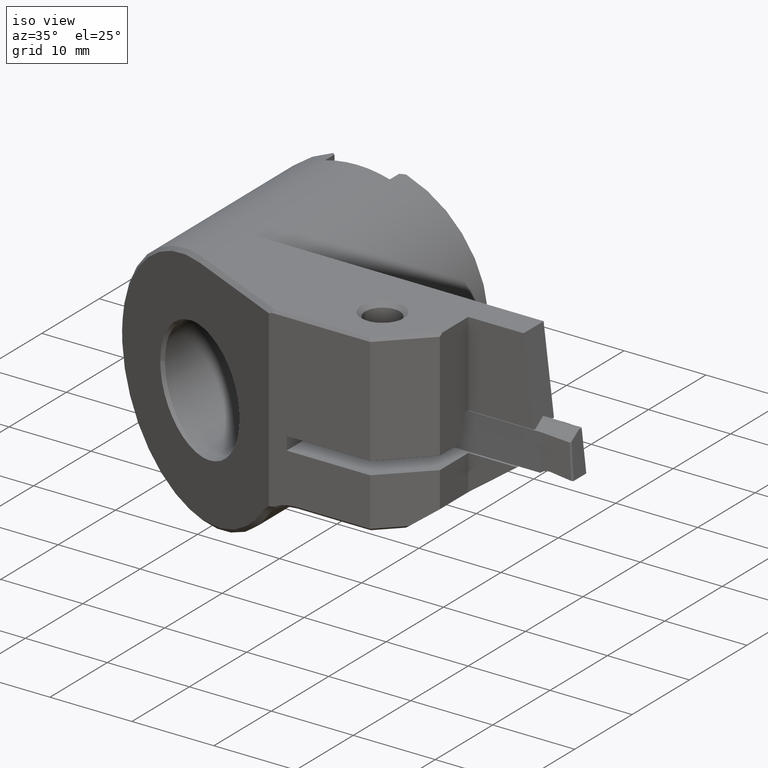
[diagram: clean part render]
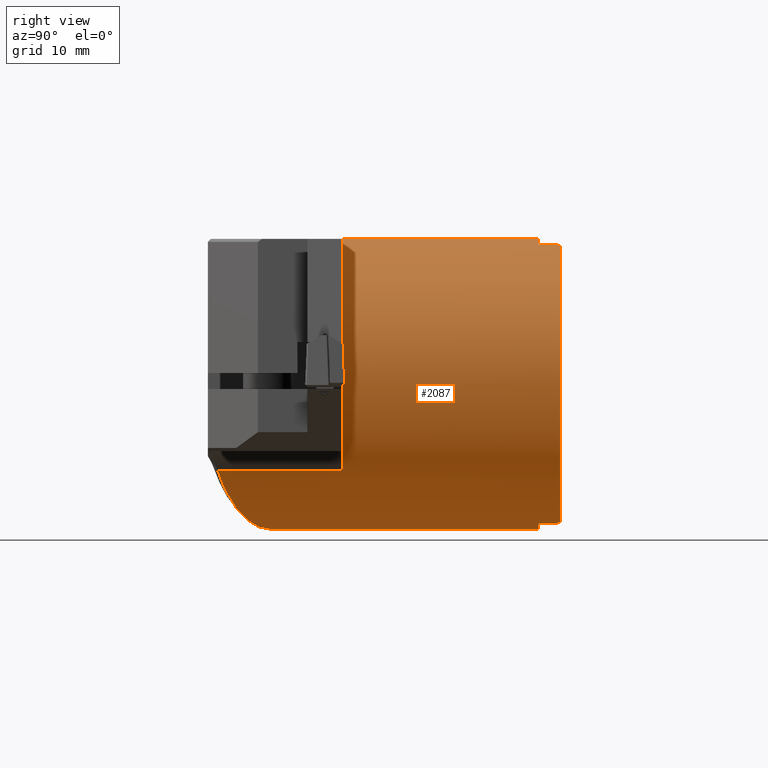
[diagram: tour spotlight — one face highlighted and labeled with its STEP entity id]
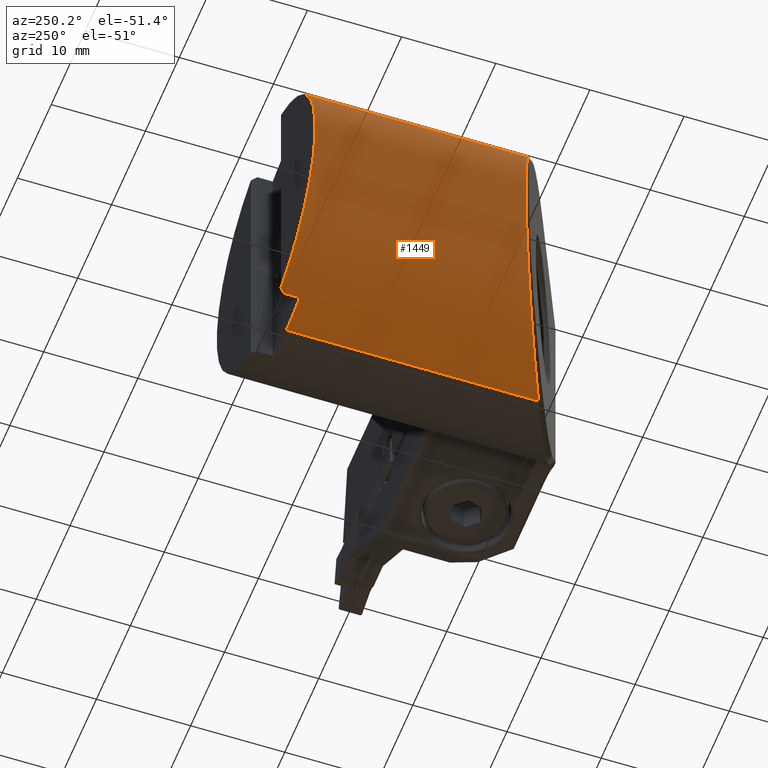
[diagram: tour spotlight — one face highlighted and labeled with its STEP entity id]
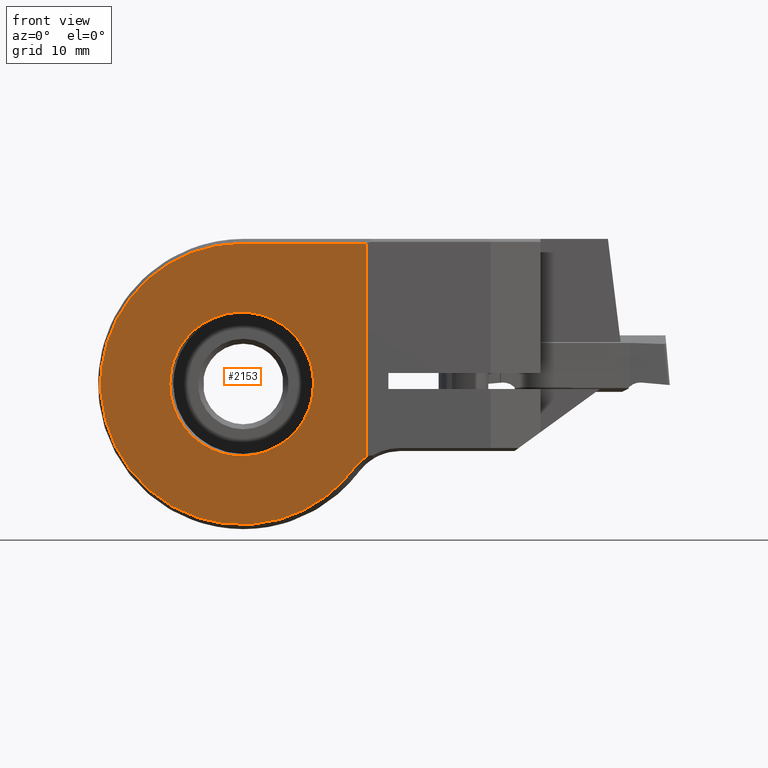
[diagram: tour spotlight — one face highlighted and labeled with its STEP entity id]
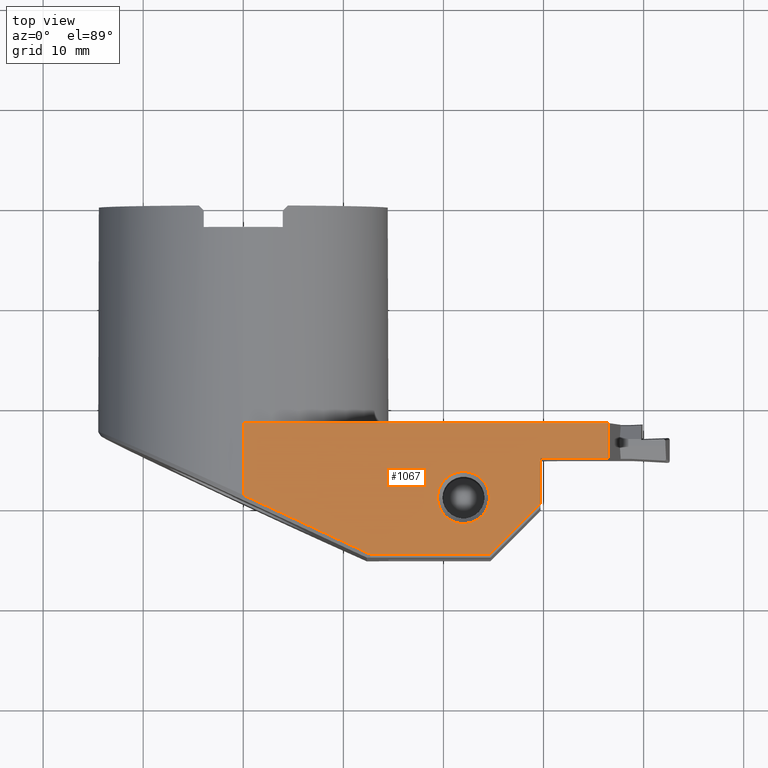
[diagram: tour spotlight — one face highlighted and labeled with its STEP entity id]
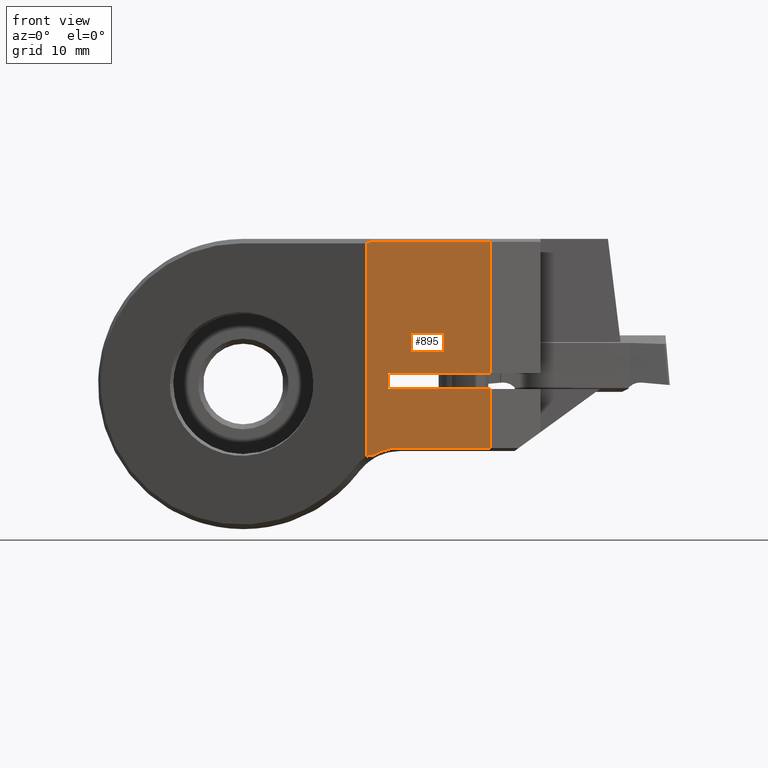
[diagram: tour spotlight — one face highlighted and labeled with its STEP entity id]
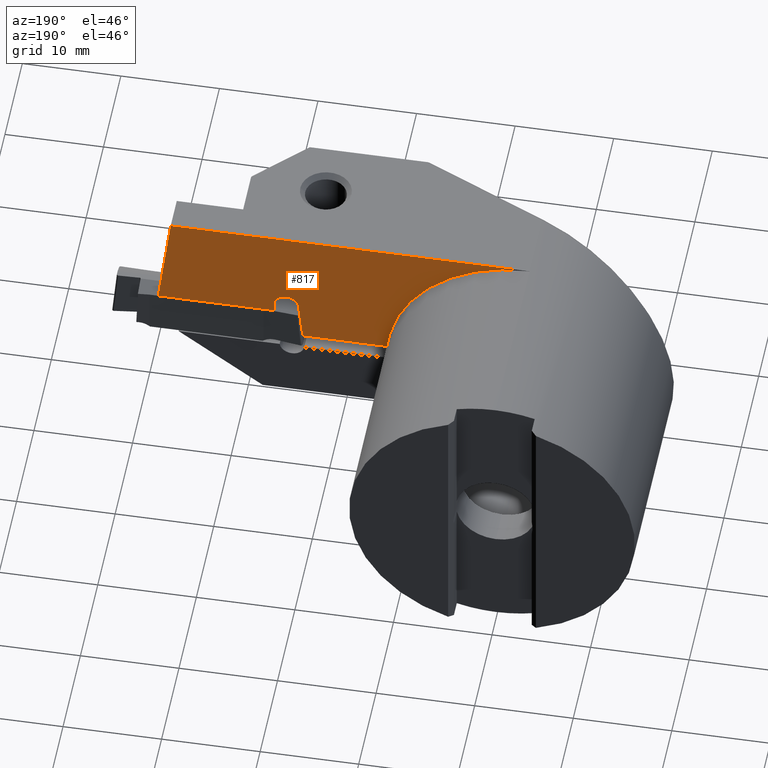
[diagram: tour spotlight — one face highlighted and labeled with its STEP entity id]
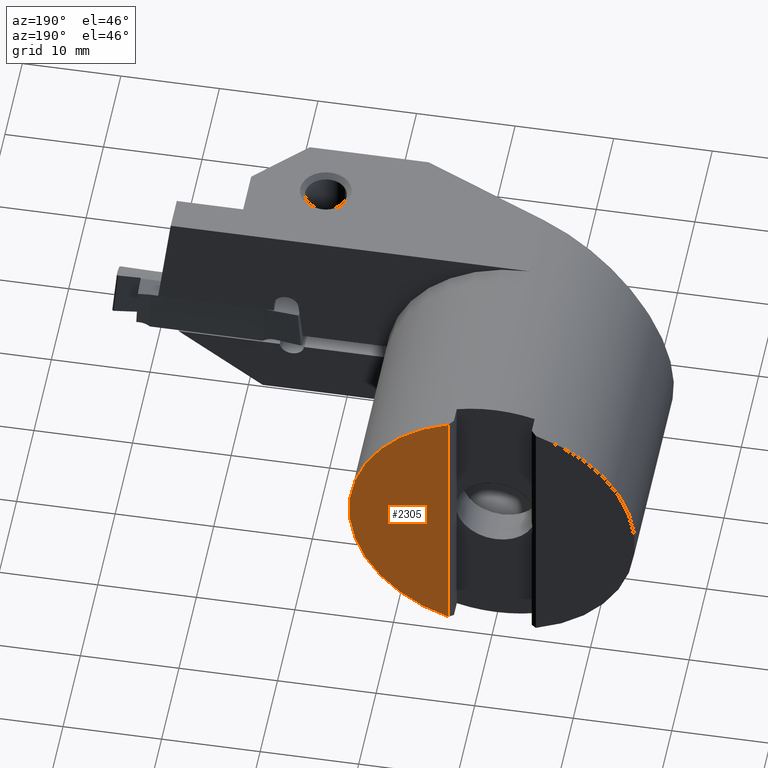
[diagram: tour spotlight — one face highlighted and labeled with its STEP entity id]
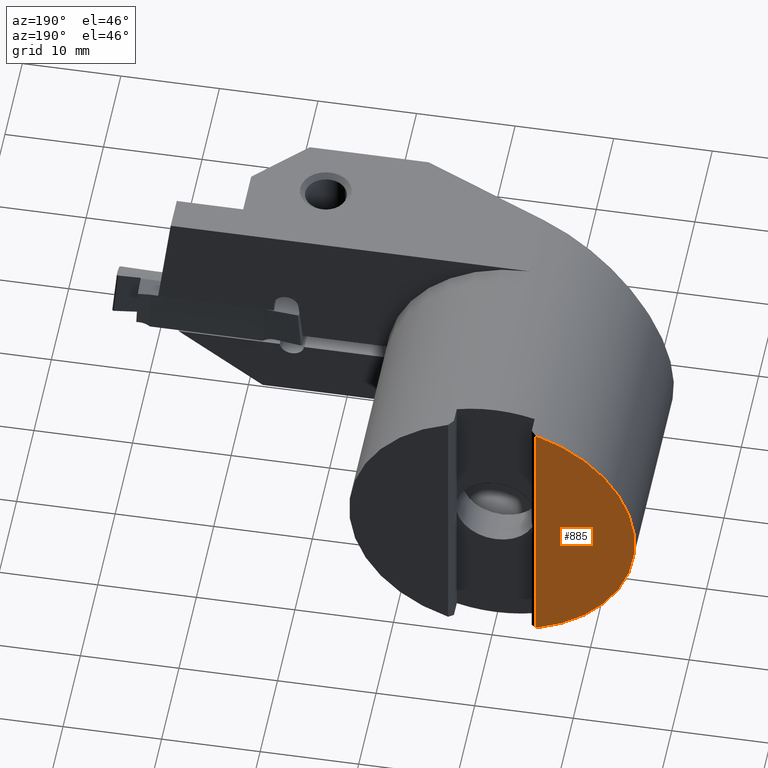
[diagram: tour spotlight — one face highlighted and labeled with its STEP entity id]
A machine part: a face-by-face anatomy tour. The part has 143 B-rep faces; the first image is the clean iso view, then the 8 largest visible faces are spotlighted one at a time (largest first), each with its STEP entity span.

Face 1 — right view, entity #2087. In plain terms, the highlighted cylindrical surface (partial cylindrical patch) has radius 14.5 mm, axis along (-0, 1, -0).
Definition (entity closure, byte-faithful):
#829=EDGE_CURVE('NONE',#1865,#2063,#2369,.T.);
#883=VERTEX_POINT('NONE',#2427);
#1105=VERTEX_POINT('NONE',#2675);
#1155=VERTEX_POINT('NONE',#2728);
#1233=EDGE_CURVE('NONE',#1473,#1371,#2812,.F.);
#1239=EDGE_CURVE('NONE',#2279,#1641,#2818,.F.);
#1311=EDGE_CURVE('NONE',#1641,#1473,#2895,.F.);
#1371=VERTEX_POINT('NONE',#2960);
#1397=EDGE_CURVE('NONE',#2245,#1155,#2990,.T.);
#1451=EDGE_CURVE('NONE',#2009,#1865,#3049,.T.);
#1473=VERTEX_POINT('NONE',#3073);
#1511=EDGE_CURVE('NONE',#2009,#1105,#3114,.T.);
#1583=EDGE_CURVE('NONE',#2063,#2217,#3195,.T.);
#1641=VERTEX_POINT('NONE',#3260);
#1643=EDGE_CURVE('NONE',#1105,#1883,#3262,.T.);
#1803=EDGE_CURVE('NONE',#1371,#1155,#3434,.F.);
#1839=EDGE_CURVE('NONE',#1883,#883,#3477,.T.);
#1865=VERTEX_POINT('NONE',#3506);
#1883=VERTEX_POINT('NONE',#3526);
#2009=VERTEX_POINT('NONE',#3667);
#2031=EDGE_CURVE('NONE',#2217,#2279,#3693,.F.);
#2063=VERTEX_POINT('NONE',#3730);
#2087=ADVANCED_FACE('NONE',(#3756),#3757,.T.);
#2163=EDGE_CURVE('NONE',#2245,#883,#3840,.F.);
#2217=VERTEX_POINT('NONE',#3896);
#2245=VERTEX_POINT('NONE',#3926);
#2279=VERTEX_POINT('NONE',#3964);
#2369=B_SPLINE_CURVE_WITH_KNOTS('',3,(#4072,#4073,#4074,#4075,#4076,#4077,#4078,#4079,#4080,#4081,#4082,#4083,#4084,#4085,#4086,#4087,#4088,#4089),.UNSPECIFIED.,.F.,.F.,(4,2,2,2,2,2,2,2,4),(-16.5312577497098,-16.2840481434787,-16.1113535424806,-16.0281642428642,-15.9152457417017,-10.2315228764494,-9.4597135466049,-2.70241459726312,-0.0),.UNSPECIFIED.);
#2427=CARTESIAN_POINT('',(0.0,-2.15,14.5));
#2675=CARTESIAN_POINT('',(14.5,-21.75,8.87839606521223E-016));
#2728=CARTESIAN_POINT('',(3.95,-0.5,13.9516128099944));
#2812=CIRCLE('',#5012,14.5);
#2818=LINE('',#5021,#5022);
#2895=ELLIPSE('',#5153,20.5060966544098,14.5);
#2960=CARTESIAN_POINT('',(4.45,0.0,13.800271736455));
#2990=LINE('',#5402,#5403);
#3049=LINE('',#5496,#5497);
#3073=CARTESIAN_POINT('',(4.45,0.0,-13.800271736455));
#3114=CIRCLE('',#5652,14.5);
#3195=B_SPLINE_CURVE_WITH_KNOTS('',3,(#5776,#5777,#5778,#5779),.UNSPECIFIED.,.F.,.F.,(4,4),(0.000218802101517351,0.02702),.UNSPECIFIED.);
#3260=CARTESIAN_POINT('',(3.95,-0.500000000000001,-13.9516128099944));
#3262=CIRCLE('',#5868,14.5);
#3434=ELLIPSE('',#6175,20.5060966544098,14.5);
#3477=LINE('',#6277,#6278);
#3506=CARTESIAN_POINT('',(11.6,-34.1922659672342,-8.7));
#3526=CARTESIAN_POINT('',(0.0,-21.75,14.5));
#3667=CARTESIAN_POINT('',(11.6,-21.75,-8.7));
#3693=CIRCLE('',#6659,14.5);
#3730=CARTESIAN_POINT('',(0.000488669164346957,-28.9511978984827,-14.4999999917656));
#3756=FACE_OUTER_BOUND('',#6767,.T.);
#3757=CYLINDRICAL_SURFACE('',#6768,14.5);
#3840=CIRCLE('',#6897,14.5);
#3896=CARTESIAN_POINT('',(1.77567921304245E-015,-2.15,-14.5));
#3926=CARTESIAN_POINT('',(3.95,-2.15,13.9516128099944));
#3964=CARTESIAN_POINT('',(3.95,-2.15,-13.9516128099944));
#4072=CARTESIAN_POINT('',(11.9430677180678,-34.3596601884355,-8.22272056448761));
#4073=CARTESIAN_POINT('',(11.8947036858328,-34.3340996596166,-8.29296676920429));
#4074=CARTESIAN_POINT('',(11.8456355585123,-34.3090523159571,-8.36290877997697));
#4075=CARTESIAN_POINT('',(11.7610920627329,-34.2673801047458,-8.48117257062569));
#4076=CARTESIAN_POINT('',(11.7259799518608,-34.2504933385859,-8.52965332596728));
#4077=CARTESIAN_POINT('',(11.6734471688633,-34.2258452308882,-8.601247853658));
#4078=CARTESIAN_POINT('',(11.6562894454562,-34.2178906005979,-8.62448558888405));
#4079=CARTESIAN_POINT('',(11.6156560735646,-34.1992767724238,-8.67917467242156));
#4080=CARTESIAN_POINT('',(11.5955561813075,-34.1902682486988,-8.70599747656782));
#4081=CARTESIAN_POINT('',(10.4740491750109,-33.6855525788399,-10.1919824284201));
#4082=CARTESIAN_POINT('',(9.12483495370816,-33.0713106011383,-11.4070066988285));
#4083=CARTESIAN_POINT('',(7.41450644106796,-32.2996631504415,-12.4632602106402));
#4084=CARTESIAN_POINT('',(7.20729602775257,-32.2062038544544,-12.5842047441199));
#4085=CARTESIAN_POINT('',(5.16163812433174,-31.2834452455987,-13.7113675832247));
#4086=CARTESIAN_POINT('',(3.1478135043816,-30.369831384894,-14.3025533941185));
#4087=CARTESIAN_POINT('',(0.279671102408739,-29.0770444961376,-14.5205720910502));
#4088=CARTESIAN_POINT('',(-0.543379877377662,-28.7064247674546,-14.5130692734401));
#4089=CARTESIAN_POINT('',(-1.36099809824959,-28.336278878168,-14.4359857362274));
#5012=AXIS2_PLACEMENT_3D('',#7683,#7684,#7685);
#5021=CARTESIAN_POINT('',(3.95,-29.17,-13.9516128099944));
#5022=VECTOR('',#7687,1.0);
#5153=AXIS2_PLACEMENT_3D('',#7757,#7758,#7759);
#5402=CARTESIAN_POINT('',(3.95,-29.17,13.9516128099944));
#5403=VECTOR('',#7860,1.0);
#5496=CARTESIAN_POINT('',(11.6,-29.17,-8.7));
#5497=VECTOR('',#7933,1.0);
#5652=AXIS2_PLACEMENT_3D('',#7996,#7997,#7998);
#5776=CARTESIAN_POINT('',(0.000488669164346733,-28.9511978984827,-14.4999999917656));
#5777=CARTESIAN_POINT('',(0.000325779442942911,-20.0174652656551,-14.4999999972552));
#5778=CARTESIAN_POINT('',(0.000162889721498101,-11.0837326328276,-14.5));
#5779=CARTESIAN_POINT('',(1.77567921304245E-015,-2.15,-14.5));
#5868=AXIS2_PLACEMENT_3D('',#8194,#8195,#8196);
#6175=AXIS2_PLACEMENT_3D('',#8345,#8346,#8347);
#6277=CARTESIAN_POINT('',(0.0,-29.17,14.5));
#6278=VECTOR('',#8408,1000.0);
#6659=AXIS2_PLACEMENT_3D('',#8661,#8662,#8663);
#6767=EDGE_LOOP('',(#8736,#8737,#8738,#8739,#8740,#8741,#8742,#8743,#8744,#8745,#8746,#8747,#8748));
#6768=AXIS2_PLACEMENT_3D('',#8749,#8750,#8751);
#6897=AXIS2_PLACEMENT_3D('',#8826,#8827,#8828);
#7683=CARTESIAN_POINT('',(0.0,0.0,0.0));
#7684=DIRECTION('',(-0.0,1.0,0.0));
#7685=DIRECTION('',(0.0,0.0,1.0));
#7687=DIRECTION('',(0.0,-1.0,0.0));
#7757=CARTESIAN_POINT('',(0.0,-4.44999999999999,0.0));
#7758=DIRECTION('',(-0.707106781186546,0.707106781186549,0.0));
#7759=DIRECTION('',(-0.707106781186549,-0.707106781186546,0.0));
#7860=DIRECTION('',(0.0,1.0,0.0));
#7933=DIRECTION('',(0.0,-1.0,0.0));
#7996=CARTESIAN_POINT('',(0.0,-21.75,0.0));
#7997=DIRECTION('',(0.0,-1.0,0.0));
#7998=DIRECTION('',(0.0,0.0,1.0));
#8194=CARTESIAN_POINT('',(0.0,-21.75,0.0));
#8195=DIRECTION('',(0.0,-1.0,0.0));
#8196=DIRECTION('',(0.0,0.0,1.0));
#8345=CARTESIAN_POINT('',(0.0,-4.44999999999999,0.0));
#8346=DIRECTION('',(-0.707106781186546,0.707106781186549,0.0));
#8347=DIRECTION('',(-0.707106781186549,-0.707106781186546,0.0));
#8408=DIRECTION('',(0.0,1.0,0.0));
#8661=CARTESIAN_POINT('',(0.0,-2.15,0.0));
#8662=DIRECTION('',(-0.0,1.0,0.0));
#8663=DIRECTION('',(0.0,0.0,1.0));
#8736=ORIENTED_EDGE('',*,*,#829,.T.);
#8737=ORIENTED_EDGE('',*,*,#1583,.T.);
#8738=ORIENTED_EDGE('',*,*,#2031,.T.);
#8739=ORIENTED_EDGE('',*,*,#1239,.T.);
#8740=ORIENTED_EDGE('',*,*,#1311,.T.);
#8741=ORIENTED_EDGE('',*,*,#1233,.T.);
#8742=ORIENTED_EDGE('',*,*,#1803,.T.);
#8743=ORIENTED_EDGE('',*,*,#1397,.F.);
#8744=ORIENTED_EDGE('',*,*,#2163,.T.);
#8745=ORIENTED_EDGE('',*,*,#1839,.F.);
#8746=ORIENTED_EDGE('',*,*,#1643,.F.);
#8747=ORIENTED_EDGE('',*,*,#1511,.F.);
#8748=ORIENTED_EDGE('',*,*,#1451,.T.);
#8749=CARTESIAN_POINT('',(0.0,-29.17,0.0));
#8750=DIRECTION('',(-0.0,1.0,-0.0));
#8751=DIRECTION('',(0.0,0.0,1.0));
#8826=CARTESIAN_POINT('',(0.0,-2.15,0.0));
#8827=DIRECTION('',(-0.0,1.0,0.0));
#8828=DIRECTION('',(0.0,0.0,1.0));

Face 2 — auxiliary view, entity #1449. In plain terms, the highlighted cylindrical surface (partial cylindrical patch) has radius 14.5 mm, axis along (-0, 1, -0).
Definition (entity closure, byte-faithful):
#883=VERTEX_POINT('NONE',#2427);
#903=EDGE_CURVE('NONE',#1999,#2295,#2450,.F.);
#931=VERTEX_POINT('NONE',#2481);
#1003=EDGE_CURVE('NONE',#1375,#1873,#2561,.T.);
#1229=EDGE_CURVE('NONE',#931,#1999,#2807,.F.);
#1295=EDGE_CURVE('NONE',#1325,#931,#2879,.T.);
#1325=VERTEX_POINT('NONE',#2910);
#1375=VERTEX_POINT('',#2965);
#1449=ADVANCED_FACE('NONE',(#3046),#3047,.T.);
#1461=EDGE_CURVE('',#2217,#1375,#3061,.T.);
#1475=VERTEX_POINT('NONE',#3075);
#1691=EDGE_CURVE('NONE',#2295,#2217,#3315,.F.);
#1839=EDGE_CURVE('NONE',#1883,#883,#3477,.T.);
#1873=VERTEX_POINT('NONE',#3514);
#1883=VERTEX_POINT('NONE',#3526);
#1891=EDGE_CURVE('NONE',#883,#1475,#3534,.F.);
#1999=VERTEX_POINT('NONE',#3655);
#2165=VERTEX_POINT('NONE',#3842);
#2181=EDGE_CURVE('NONE',#1873,#1883,#3858,.F.);
#2217=VERTEX_POINT('NONE',#3896);
#2221=EDGE_CURVE('NONE',#2165,#1325,#3900,.F.);
#2291=EDGE_CURVE('NONE',#1475,#2165,#3977,.F.);
#2295=VERTEX_POINT('NONE',#3981);
#2427=CARTESIAN_POINT('',(0.0,-2.15,14.5));
#2450=LINE('',#4266,#4267);
#2481=CARTESIAN_POINT('',(-4.45,0.0,-13.800271736455));
#2561=B_SPLINE_CURVE_WITH_KNOTS('',3,(#4564,#4565,#4566,#4567,#4568,#4569,#4570,#4571,#4572,#4573,#4574,#4575,#4576,#4577,#4578,#4579,#4580,#4581,#4582,#4583,#4584,#4585,#4586,#4587,#4588,#4589,#4590,#4591,#4592,#4593,#4594,#4595,#4596,#4597,#4598,#4599,#4600,#4601,#4602,#4603,#4604,#4605,#4606,#4607,#4608,#4609,#4610,#4611,#4612,#4613,#4614,#4615,#4616,#4617),.UNSPECIFIED.,.F.,.F.,(4,2,2,2,2,2,2,2,2,2,2,2,2,2,2,2,2,2,2,2,2,2,2,2,2,2,4),(-54.8007920544652,-51.1881576542774,-47.7250882176403,-45.3768788867525,-42.7743504557252,-38.8617073734681,-35.8031262073322,-33.9653929259779,-30.7206399494008,-27.8928284760143,-26.190683874534,-20.3607618961766,-19.6208966852557,-17.8921643861099,-12.5592507341891,-9.16005127654467,-6.1958030088485,-2.79899680891492,-0.676305647554137,-0.621248917297528,-0.562381916924579,-0.471929568490539,-0.397858719077565,-0.32531758216195,-0.211429435980957,-0.111157526055095,-0.0),.UNSPECIFIED.);
#2807=ELLIPSE('',#5006,20.5060966544099,14.5);
#2879=CIRCLE('',#5128,14.5);
#2910=CARTESIAN_POINT('',(-4.45,0.0,13.800271736455));
#2965=CARTESIAN_POINT('',(6.74494404495934E-015,-28.9509775527865,-14.5));
#3046=FACE_OUTER_BOUND('',#5492,.T.);
#3047=CYLINDRICAL_SURFACE('',#5493,14.5);
#3061=LINE('',#5510,#5511);
#3075=CARTESIAN_POINT('',(-3.95,-2.15,13.9516128099944));
#3315=CIRCLE('',#5991,14.5);
#3477=LINE('',#6277,#6278);
#3514=CARTESIAN_POINT('',(0.0,-28.9496736764256,14.5));
#3526=CARTESIAN_POINT('',(0.0,-21.75,14.5));
#3534=CIRCLE('',#6391,14.5);
#3655=CARTESIAN_POINT('',(-3.95,-0.500000000000004,-13.9516128099944));
#3842=CARTESIAN_POINT('',(-3.95,-0.500000000000004,13.9516128099944));
#3858=LINE('',#6919,#6920);
#3896=CARTESIAN_POINT('',(1.77567921304245E-015,-2.15,-14.5));
#3900=ELLIPSE('',#6989,20.5060966544099,14.5);
#3977=LINE('',#7138,#7139);
#3981=CARTESIAN_POINT('',(-3.95,-2.15,-13.9516128099944));
#4266=CARTESIAN_POINT('',(-3.95,-29.17,-13.9516128099944));
#4267=VECTOR('',#7305,1.0);
#4564=CARTESIAN_POINT('',(1.66428063757767,-29.7011978984827,-14.4041719636841));
#4565=CARTESIAN_POINT('',(0.66334517712041,-29.2498170638549,-14.519821617861));
#4566=CARTESIAN_POINT('',(-0.346510516631402,-28.7955338107362,-14.5307618601647));
#4567=CARTESIAN_POINT('',(-2.30936047552149,-27.9069587824729,-14.3473974604495));
#4568=CARTESIAN_POINT('',(-3.26181560098679,-27.4742611498093,-14.161701613519));
#4569=CARTESIAN_POINT('',(-4.8219838727461,-26.7678078494751,-13.6905862774488));
#4570=CARTESIAN_POINT('',(-5.44129400385776,-26.4879677721582,-13.456721715872));
#4571=CARTESIAN_POINT('',(-6.71396102109019,-25.9138830952475,-12.8730133475909));
#4572=CARTESIAN_POINT('',(-7.36228461112809,-25.6220383227658,-12.5140246427098));
#4573=CARTESIAN_POINT('',(-8.91779048254991,-24.9196127285332,-11.4880493795057));
#4574=CARTESIAN_POINT('',(-9.78809039672404,-24.5238767392901,-10.758744027734));
#4575=CARTESIAN_POINT('',(-11.1825182416354,-23.8928396542029,-9.27362632651892));
#4576=CARTESIAN_POINT('',(-11.7377870042325,-23.6426770951381,-8.56162159093083));
#4577=CARTESIAN_POINT('',(-12.5203892822022,-23.2906012313509,-7.33405851580337));
#4578=CARTESIAN_POINT('',(-12.7890130084584,-23.1698068525776,-6.85526318648381));
#4579=CARTESIAN_POINT('',(-13.4573046207288,-22.8674661338283,-5.48607834386892));
#4580=CARTESIAN_POINT('',(-13.79749905169,-22.7118647221358,-4.5661822145052));
#4581=CARTESIAN_POINT('',(-14.2568680664748,-22.5033736007928,-2.78014464208588));
#4582=CARTESIAN_POINT('',(-14.3970040163547,-22.4406561831457,-1.92934072131395));
#4583=CARTESIAN_POINT('',(-14.4989124103526,-22.3961381594118,-0.549416532986993));
#4584=CARTESIAN_POINT('',(-14.5092959304311,-22.3920913646248,-0.0292457346970096));
#4585=CARTESIAN_POINT('',(-14.4314280837847,-22.4278209021862,2.27098638880581));
#4586=CARTESIAN_POINT('',(-14.0457066709021,-22.5981306212758,4.00729428523273));
#4587=CARTESIAN_POINT('',(-13.2768782361912,-22.9475194191963,5.8330331297213));
#4588=CARTESIAN_POINT('',(-13.1857146593256,-22.9889686425278,6.03625369988303));
#4589=CARTESIAN_POINT('',(-12.8666363042722,-23.1340051505498,6.70593249532671));
#4590=CARTESIAN_POINT('',(-12.6191455692845,-23.2464583402455,7.16047840780484));
#4591=CARTESIAN_POINT('',(-11.5165108211444,-23.7448814924281,8.95234890239826));
#4592=CARTESIAN_POINT('',(-10.4816850245262,-24.2090971316608,10.1373770225604));
#4593=CARTESIAN_POINT('',(-8.5423709323993,-25.0873710291415,11.7577935603966));
#4594=CARTESIAN_POINT('',(-7.73117261793676,-25.4557863875525,12.3050320035242));
#4595=CARTESIAN_POINT('',(-6.13787422016192,-26.1754578226093,13.1638675793664));
#4596=CARTESIAN_POINT('',(-5.36648022566201,-26.5230194339408,13.496164389469));
#4597=CARTESIAN_POINT('',(-3.66819138538204,-27.2900305358867,14.0608586768686));
#4598=CARTESIAN_POINT('',(-2.73739249835886,-27.7115708927632,14.2708086031643));
#4599=CARTESIAN_POINT('',(-1.20834366544481,-28.4039193336025,14.4617111559649));
#4600=CARTESIAN_POINT('',(-0.616516405370816,-28.671782344473,14.4989888665402));
#4601=CARTESIAN_POINT('',(-0.00889677790365475,-28.9456641324344,14.5000054077491));
#4602=CARTESIAN_POINT('',(0.00706119826606442,-28.9528474117956,14.5000079208232));
#4603=CARTESIAN_POINT('',(0.0416586551283126,-28.9685024725349,14.49995117768));
#4604=CARTESIAN_POINT('',(0.0595222111536258,-28.9766218836977,14.4998888178012));
#4605=CARTESIAN_POINT('',(0.1047990423963,-28.9972934282038,14.4996472173491));
#4606=CARTESIAN_POINT('',(0.132193138415904,-29.009886285736,14.4994232188613));
#4607=CARTESIAN_POINT('',(0.181959571262619,-29.0329198307162,14.4988755697261));
#4608=CARTESIAN_POINT('',(0.204342596575868,-29.0433371247603,14.4985773167014));
#4609=CARTESIAN_POINT('',(0.248601406019597,-29.0640499239441,14.4978852596855));
#4610=CARTESIAN_POINT('',(0.270477891889043,-29.0743433948433,14.4974935597725));
#4611=CARTESIAN_POINT('',(0.326643068806042,-29.1009131853284,14.4963609922968));
#4612=CARTESIAN_POINT('',(0.360898596544112,-29.1172551639646,14.4955483749439));
#4613=CARTESIAN_POINT('',(0.425209116737872,-29.1481928813202,14.4937953808949));
#4614=CARTESIAN_POINT('',(0.455276056562757,-29.1627635103929,14.4928819109699));
#4615=CARTESIAN_POINT('',(0.518580738732696,-29.1936658873044,14.4907619865313));
#4616=CARTESIAN_POINT('',(0.551807634827274,-29.2100167514832,14.4895345151539));
#4617=CARTESIAN_POINT('',(0.584978975970766,-29.2264714380542,14.4881951808247));
#5006=AXIS2_PLACEMENT_3D('',#7670,#7671,#7672);
#5128=AXIS2_PLACEMENT_3D('',#7750,#7751,#7752);
#5492=EDGE_LOOP('',(#7919,#7920,#7921,#7922,#7923,#7924,#7925,#7926,#7927,#7928,#7929));
#5493=AXIS2_PLACEMENT_3D('',#7930,#7931,#7932);
#5510=CARTESIAN_POINT('',(-1.77567849867723E-015,-14.4759480048323,-14.5));
#5511=VECTOR('',#7950,1.0);
#5991=AXIS2_PLACEMENT_3D('',#8246,#8247,#8248);
#6277=CARTESIAN_POINT('',(0.0,-29.17,14.5));
#6278=VECTOR('',#8408,1000.0);
#6391=AXIS2_PLACEMENT_3D('',#8463,#8464,#8465);
#6919=CARTESIAN_POINT('',(0.0,-29.17,14.5));
#6920=VECTOR('',#8833,1.0);
#6989=AXIS2_PLACEMENT_3D('',#8863,#8864,#8865);
#7138=CARTESIAN_POINT('',(-3.95,-29.17,13.9516128099944));
#7139=VECTOR('',#8945,1.0);
#7305=DIRECTION('',(-0.0,1.0,0.0));
#7670=CARTESIAN_POINT('',(0.0,-4.45000000000001,0.0));
#7671=DIRECTION('',(0.707106781186548,0.707106781186547,0.0));
#7672=DIRECTION('',(-0.707106781186547,0.707106781186548,-0.0));
#7750=CARTESIAN_POINT('',(0.0,0.0,0.0));
#7751=DIRECTION('',(0.0,-1.0,0.0));
#7752=DIRECTION('',(0.0,0.0,1.0));
#7919=ORIENTED_EDGE('',*,*,#1461,.T.);
#7920=ORIENTED_EDGE('',*,*,#1003,.T.);
#7921=ORIENTED_EDGE('',*,*,#2181,.T.);
#7922=ORIENTED_EDGE('',*,*,#1839,.T.);
#7923=ORIENTED_EDGE('',*,*,#1891,.T.);
#7924=ORIENTED_EDGE('',*,*,#2291,.T.);
#7925=ORIENTED_EDGE('',*,*,#2221,.T.);
#7926=ORIENTED_EDGE('',*,*,#1295,.T.);
#7927=ORIENTED_EDGE('',*,*,#1229,.T.);
#7928=ORIENTED_EDGE('',*,*,#903,.T.);
#7929=ORIENTED_EDGE('',*,*,#1691,.T.);
#7930=CARTESIAN_POINT('',(0.0,-29.17,0.0));
#7931=DIRECTION('',(-0.0,1.0,-0.0));
#7932=DIRECTION('',(0.0,0.0,1.0));
#7950=DIRECTION('',(0.0,-1.0,0.0));
#8246=CARTESIAN_POINT('',(0.0,-2.15,0.0));
#8247=DIRECTION('',(-0.0,1.0,0.0));
#8248=DIRECTION('',(0.0,0.0,1.0));
#8408=DIRECTION('',(0.0,1.0,0.0));
#8463=CARTESIAN_POINT('',(0.0,-2.15,0.0));
#8464=DIRECTION('',(-0.0,1.0,0.0));
#8465=DIRECTION('',(0.0,0.0,1.0));
#8833=DIRECTION('',(0.0,-1.0,0.0));
#8863=CARTESIAN_POINT('',(0.0,-4.45000000000001,0.0));
#8864=DIRECTION('',(0.707106781186548,0.707106781186547,0.0));
#8865=DIRECTION('',(-0.707106781186547,0.707106781186548,-0.0));
#8945=DIRECTION('',(0.0,-1.0,0.0));

Face 3 — front view, entity #2153. In plain terms, the highlighted planar face has unit normal (0.4226, 0.9063, -0).
Definition (entity closure, byte-faithful):
#851=EDGE_CURVE('NONE',#1645,#1453,#2394,.T.);
#925=EDGE_CURVE('NONE',#2265,#1159,#2475,.T.);
#1015=VERTEX_POINT('NONE',#2575);
#1159=VERTEX_POINT('NONE',#2732);
#1223=VERTEX_POINT('NONE',#2801);
#1349=EDGE_CURVE('NONE',#1015,#1223,#2936,.T.);
#1453=VERTEX_POINT('NONE',#3051);
#1545=EDGE_CURVE('NONE',#1159,#1645,#3153,.F.);
#1645=VERTEX_POINT('NONE',#3264);
#1841=EDGE_CURVE('NONE',#1223,#1015,#3479,.T.);
#2099=EDGE_CURVE('NONE',#1453,#2265,#3769,.F.);
#2153=ADVANCED_FACE('NONE',(#3828,#3829),#3830,.F.);
#2265=VERTEX_POINT('NONE',#3949);
#2394=B_SPLINE_CURVE_WITH_KNOTS('',3,(#4129,#4130,#4131,#4132,#4133,#4134,#4135,#4136,#4137,#4138,#4139,#4140,#4141,#4142,#4143,#4144,#4145,#4146,#4147,#4148,#4149,#4150,#4151,#4152,#4153,#4154,#4155,#4156,#4157,#4158,#4159,#4160,#4161,#4162,#4163,#4164,#4165,#4166),.UNSPECIFIED.,.F.,.F.,(4,2,2,2,2,2,2,2,2,2,2,2,2,2,2,2,2,2,4),(0.0,0.03125,0.0625,0.09375,0.125,0.1875,0.25,0.3125,0.375,0.4375,0.5,0.5625,0.625,0.6875,0.75,0.8125,0.875,0.9375,1.0),.UNSPECIFIED.);
#2475=LINE('',#4384,#4385);
#2575=CARTESIAN_POINT('',(7.02297767569965,-32.7172340516941,0.0));
#2732=CARTESIAN_POINT('',(12.3472864338472,-35.2,14.0534693113114));
#2801=CARTESIAN_POINT('',(-7.34099255856656,-26.0192047299453,0.0));
#2936=B_SPLINE_CURVE_WITH_KNOTS('',3,(#5229,#5230,#5231,#5232,#5233,#5234,#5235,#5236,#5237,#5238,#5239,#5240,#5241,#5242,#5243,#5244,#5245,#5246),.UNSPECIFIED.,.F.,.F.,(4,2,2,2,2,2,2,2,4),(0.5,0.5625,0.625,0.6875,0.75,0.8125,0.875,0.9375,1.0),.UNSPECIFIED.);
#3051=CARTESIAN_POINT('',(11.0540634255816,-34.5969602075435,-8.43208158678682));
#3153=LINE('',#5716,#5717);
#3264=CARTESIAN_POINT('',(-0.188712023467454,-29.3543679167349,14.0534693113114));
#3479=B_SPLINE_CURVE_WITH_KNOTS('',3,(#6281,#6282,#6283,#6284,#6285,#6286,#6287,#6288,#6289,#6290,#6291,#6292,#6293,#6294,#6295,#6296,#6297,#6298),.UNSPECIFIED.,.F.,.F.,(4,2,2,2,2,2,2,2,4),(0.0,0.0625,0.125,0.1875,0.25,0.3125,0.375,0.4375,0.5),.UNSPECIFIED.);
#3769=B_SPLINE_CURVE_WITH_KNOTS('',3,(#6784,#6785,#6786,#6787,#6788,#6789),.UNSPECIFIED.,.F.,.F.,(4,2,4),(-1.39027944779397,-0.711381349151417,-0.0),.UNSPECIFIED.);
#3828=FACE_OUTER_BOUND('',#6880,.T.);
#3829=FACE_BOUND('',#6881,.T.);
#3830=PLANE('',#6882);
#3949=CARTESIAN_POINT('',(12.3472864338471,-35.2,-7.19699553711934));
#4129=CARTESIAN_POINT('',(-0.188712023467454,-29.3543679167349,14.0534693113114));
#4130=CARTESIAN_POINT('',(-0.784006930613462,-29.0767773426721,14.0540736396876));
#4131=CARTESIAN_POINT('',(-1.37622870789404,-28.8006197926,14.016608049636));
#4132=CARTESIAN_POINT('',(-2.55452600272433,-28.2511707404373,13.8655370326771));
#4133=CARTESIAN_POINT('',(-3.14194402041629,-27.9772532202493,13.7515823376073));
#4134=CARTESIAN_POINT('',(-4.30526379550033,-27.4347883002445,13.448930183262));
#4135=CARTESIAN_POINT('',(-4.87181449393265,-27.1706013708324,13.2627962713953));
#4136=CARTESIAN_POINT('',(-5.97469751257787,-26.656318573189,12.8209127782737));
#4137=CARTESIAN_POINT('',(-6.51211168245706,-26.4057182301733,12.5645601166398));
#4138=CARTESIAN_POINT('',(-8.07253552676785,-25.6780806416036,11.6946971099303));
#4139=CARTESIAN_POINT('',(-9.02880605099291,-25.2321643728895,10.9878471364477));
#4140=CARTESIAN_POINT('',(-10.7682103728342,-24.421066816987,9.32515176269514));
#4141=CARTESIAN_POINT('',(-11.5170968551259,-24.0718553152057,8.40143059869238));
#4142=CARTESIAN_POINT('',(-12.7695172514442,-23.4878420931729,6.37526150164334));
#4143=CARTESIAN_POINT('',(-13.2605342371371,-23.2588771124601,5.2922124046364));
#4144=CARTESIAN_POINT('',(-13.9700940690905,-22.9280039289011,2.99295015716286));
#4145=CARTESIAN_POINT('',(-14.1743683631302,-22.8327492612262,1.82147080382882));
#4146=CARTESIAN_POINT('',(-14.2815871224309,-22.7827523326664,-0.558113773545286));
#4147=CARTESIAN_POINT('',(-14.1830455288798,-22.828703032386,-1.74318039118069));
#4148=CARTESIAN_POINT('',(-13.6831313839241,-23.0618168265989,-4.09693639883407));
#4149=CARTESIAN_POINT('',(-13.2910800935349,-23.2446333456969,-5.21960629456839));
#4150=CARTESIAN_POINT('',(-12.2259541132395,-23.7413097472085,-7.35019878535139));
#4151=CARTESIAN_POINT('',(-11.562800298573,-24.0505434495222,-8.33727551782227));
#4152=CARTESIAN_POINT('',(-9.97996861643326,-24.7886299844743,-10.1496568941829));
#4153=CARTESIAN_POINT('',(-9.0908421072031,-25.203236484797,-10.9393061282492));
#4154=CARTESIAN_POINT('',(-7.12301517868073,-26.1208492514906,-12.2815332408217));
#4155=CARTESIAN_POINT('',(-6.06313091056078,-26.6150814024729,-12.820735118512));
#4156=CARTESIAN_POINT('',(-3.79808562353836,-27.6712893658794,-13.6329256599532));
#4157=CARTESIAN_POINT('',(-2.63697206461615,-28.2127255103924,-13.8896494285755));
#4158=CARTESIAN_POINT('',(-0.26461233783143,-29.3189750188906,-14.103717879334));
#4159=CARTESIAN_POINT('',(0.923685737475033,-29.8730875115769,-14.0585425047904));
#4160=CARTESIAN_POINT('',(3.29753363148446,-30.9800309638486,-13.6649306977473));
#4161=CARTESIAN_POINT('',(4.43550567941004,-31.5106760445626,-13.3242650232385));
#4162=CARTESIAN_POINT('',(6.61419039485509,-32.5266134120799,-12.3549274187279));
#4163=CARTESIAN_POINT('',(7.62862924243495,-32.9996540154363,-11.7383865745169));
#4164=CARTESIAN_POINT('',(9.51248644078702,-33.8781110538983,-10.2377479643815));
#4165=CARTESIAN_POINT('',(10.3403216354439,-34.2641369448571,-9.38575273682734));
#4166=CARTESIAN_POINT('',(11.0540634255816,-34.5969602075435,-8.43208158678682));
#4384=CARTESIAN_POINT('',(12.3472864338472,-35.2,16.0));
#4385=VECTOR('',#7337,1.0);
#5229=CARTESIAN_POINT('',(7.02297767569965,-32.7172340516941,0.0));
#5230=CARTESIAN_POINT('',(7.02309475291124,-32.7172886456944,-0.940863974357923));
#5231=CARTESIAN_POINT('',(6.83848516862285,-32.631203782772,-1.85727082155099));
#5232=CARTESIAN_POINT('',(6.10246143874944,-32.2879902809482,-3.63477348282755));
#5233=CARTESIAN_POINT('',(5.58463028522629,-32.0465216484291,-4.41305745908215));
#5234=CARTESIAN_POINT('',(4.25421558931816,-31.4261390872052,-5.74380329832921));
#5235=CARTESIAN_POINT('',(3.47567957537385,-31.0631017817535,-6.26126171765069));
#5236=CARTESIAN_POINT('',(1.69834525499987,-30.2343171770614,-6.99769977258851));
#5237=CARTESIAN_POINT('',(0.78185421825358,-29.8069503879962,-7.18186803982966));
#5238=CARTESIAN_POINT('',(-1.09986910112051,-28.9294883936432,-7.18210219443655));
#5239=CARTESIAN_POINT('',(-2.01627391030174,-28.5021618131519,-6.99749313758363));
#5240=CARTESIAN_POINT('',(-3.79378068580579,-27.673296791312,-6.26146835265559));
#5241=CARTESIAN_POINT('',(-4.57206437391859,-27.3103771473278,-5.74363825220291));
#5242=CARTESIAN_POINT('',(-5.90281126635963,-26.6898396803166,-4.41322250520848));
#5243=CARTESIAN_POINT('',(-6.41991771129701,-26.448708984961,-3.63553671865796));
#5244=CARTESIAN_POINT('',(-7.15705866180907,-26.1049745145976,-1.8565075857206));
#5245=CARTESIAN_POINT('',(-7.34122678581358,-26.0190955079862,-0.941166868324177));
#5246=CARTESIAN_POINT('',(-7.34099255856656,-26.0192047299453,0.0));
#5716=CARTESIAN_POINT('',(12.99063851,-35.5,14.0534693113114));
#5717=VECTOR('',#8061,1.0);
#6281=CARTESIAN_POINT('',(-7.34099255856656,-26.0192047299453,0.0));
#6282=CARTESIAN_POINT('',(-7.34075819547766,-26.0193140152484,0.94171270522912));
#6283=CARTESIAN_POINT('',(-7.15650005148465,-26.1052349988698,1.85727082155257));
#6284=CARTESIAN_POINT('',(-6.42047632162147,-26.4484485006888,3.63477348282598));
#6285=CARTESIAN_POINT('',(-5.90264516809925,-26.6899171332074,4.41305745907963));
#6286=CARTESIAN_POINT('',(-4.57223047217901,-27.310299694437,5.74380329833172));
#6287=CARTESIAN_POINT('',(-3.79369445824075,-27.6733369998859,6.2612617176507));
#6288=CARTESIAN_POINT('',(-2.01636013786678,-28.502121604578,6.99769977258851));
#6289=CARTESIAN_POINT('',(-1.0998691011196,-28.9294883936436,7.18186803982966));
#6290=CARTESIAN_POINT('',(0.781854218252694,-29.8069503879957,7.18210219443655));
#6291=CARTESIAN_POINT('',(1.69825902744135,-30.2342769684905,6.99749313758055));
#6292=CARTESIAN_POINT('',(3.47576580293238,-31.0631419903244,6.26146835265864));
#6293=CARTESIAN_POINT('',(4.25404949105271,-31.426061634312,5.74363825219843));
#6294=CARTESIAN_POINT('',(5.58479638349174,-32.0465991013223,4.41322250521291));
#6295=CARTESIAN_POINT('',(6.10225427612487,-32.2878936794299,3.63468852851774));
#6296=CARTESIAN_POINT('',(6.83869233124743,-32.6313003842903,1.85735577586079));
#6297=CARTESIAN_POINT('',(7.02286059848806,-32.7171794576937,0.940863974357923));
#6298=CARTESIAN_POINT('',(7.02297767569965,-32.7172340516941,0.0));
#6784=CARTESIAN_POINT('',(12.8120977711579,-35.4167450861853,-6.91055965758415));
#6785=CARTESIAN_POINT('',(12.5390984202376,-35.2894433981798,-7.07011919841817));
#6786=CARTESIAN_POINT('',(12.2222704733965,-35.1417041002503,-7.2518502609418));
#6787=CARTESIAN_POINT('',(11.3912126923371,-34.754175492573,-7.98203059971506));
#6788=CARTESIAN_POINT('',(11.1347548902337,-34.6345872554585,-8.32436884084373));
#6789=CARTESIAN_POINT('',(10.9978340828384,-34.5707400344094,-8.50714054048849));
#6880=EDGE_LOOP('',(#8815,#8816,#8817,#8818));
#6881=EDGE_LOOP('',(#8819,#8820));
#6882=AXIS2_PLACEMENT_3D('',#8821,#8822,#8823);
#7337=DIRECTION('',(1.91836824379227E-031,-8.94549803241693E-032,1.0));
#8061=DIRECTION('',(0.906307787036649,-0.422618261740701,-7.85046229341888E-017));
#8815=ORIENTED_EDGE('',*,*,#851,.T.);
#8816=ORIENTED_EDGE('',*,*,#2099,.T.);
#8817=ORIENTED_EDGE('',*,*,#925,.T.);
#8818=ORIENTED_EDGE('',*,*,#1545,.T.);
#8819=ORIENTED_EDGE('',*,*,#1841,.T.);
#8820=ORIENTED_EDGE('',*,*,#1349,.T.);
#8821=CARTESIAN_POINT('',(12.99063851,-35.5,17.5));
#8822=DIRECTION('',(0.422618261740701,0.906307787036649,-0.0));
#8823=DIRECTION('',(0.0,0.0,1.0));

Face 4 — top view, entity #1067. In plain terms, the highlighted planar face has unit normal (0, -0, 1).
Definition (entity closure, byte-faithful):
#813=EDGE_CURVE('NONE',#1575,#1567,#2349,.T.);
#951=VERTEX_POINT('NONE',#2502);
#1067=ADVANCED_FACE('NONE',(#2632,#2633),#2634,.T.);
#1237=EDGE_CURVE('NONE',#1431,#2195,#2816,.F.);
#1263=VERTEX_POINT('NONE',#2844);
#1391=EDGE_CURVE('NONE',#1883,#2195,#2982,.F.);
#1399=EDGE_CURVE('NONE',#1873,#1263,#2992,.T.);
#1401=VERTEX_POINT('NONE',#2994);
#1403=EDGE_CURVE('NONE',#951,#1853,#2996,.T.);
#1429=EDGE_CURVE('NONE',#1401,#1853,#3024,.F.);
#1431=VERTEX_POINT('NONE',#3026);
#1567=VERTEX_POINT('NONE',#3177);
#1569=EDGE_CURVE('NONE',#1263,#1401,#3179,.F.);
#1575=VERTEX_POINT('NONE',#3185);
#1853=VERTEX_POINT('NONE',#3494);
#1869=EDGE_CURVE('NONE',#1431,#951,#3510,.T.);
#1873=VERTEX_POINT('NONE',#3514);
#1883=VERTEX_POINT('NONE',#3526);
#2121=EDGE_CURVE('NONE',#1567,#1575,#3794,.F.);
#2181=EDGE_CURVE('NONE',#1873,#1883,#3858,.F.);
#2195=VERTEX_POINT('NONE',#3874);
#2349=CIRCLE('',#4037,2.60000000000001);
#2502=CARTESIAN_POINT('',(29.7,-25.25,14.5));
#2632=FACE_OUTER_BOUND('',#4721,.T.);
#2633=FACE_BOUND('',#4722,.T.);
#2634=PLANE('',#4723);
#2816=LINE('',#5017,#5018);
#2844=CARTESIAN_POINT('',(12.7605159801955,-34.9,14.5));
#2982=LINE('',#5392,#5393);
#2992=LINE('',#5406,#5407);
#2994=CARTESIAN_POINT('',(24.5757359312881,-34.9,14.5));
#2996=LINE('',#5412,#5413);
#3024=LINE('',#5463,#5464);
#3026=CARTESIAN_POINT('',(36.4353190227002,-25.25,14.5));
#3177=CARTESIAN_POINT('',(24.6,-29.2,14.5));
#3179=LINE('',#5754,#5755);
#3185=CARTESIAN_POINT('',(19.4,-29.2,14.5));
#3494=CARTESIAN_POINT('',(29.7,-29.7757359312881,14.5));
#3510=LINE('',#6346,#6347);
#3514=CARTESIAN_POINT('',(0.0,-28.9496736764256,14.5));
#3526=CARTESIAN_POINT('',(0.0,-21.75,14.5));
#3794=CIRCLE('',#6831,2.60000000000001);
#3858=LINE('',#6919,#6920);
#3874=CARTESIAN_POINT('',(36.4353190227002,-21.75,14.5));
#4037=AXIS2_PLACEMENT_3D('',#7184,#7185,#7186);
#4721=EDGE_LOOP('',(#7523,#7524,#7525,#7526,#7527,#7528,#7529,#7530));
#4722=EDGE_LOOP('',(#7531,#7532));
#4723=AXIS2_PLACEMENT_3D('',#7533,#7534,#7535);
#5017=CARTESIAN_POINT('',(36.4353190227002,-32.2355,14.5));
#5018=VECTOR('',#7686,1.0);
#5392=CARTESIAN_POINT('',(8.67361737988404E-016,-21.75,14.5));
#5393=VECTOR('',#7843,1.0);
#5406=CARTESIAN_POINT('',(6.63187020569549,-32.0421655412313,14.5));
#5407=VECTOR('',#7861,0.999999999999999);
#5412=CARTESIAN_POINT('',(29.7,-32.71,14.5));
#5413=VECTOR('',#7862,1.0);
#5463=CARTESIAN_POINT('',(15.152867965644,-44.3228679656441,14.5));
#5464=VECTOR('',#7890,1.0);
#5754=CARTESIAN_POINT('',(18.85,-34.9,14.5));
#5755=VECTOR('',#8089,1.0);
#6346=CARTESIAN_POINT('',(14.85,-25.25,14.5));
#6347=VECTOR('',#8440,1.0);
#6831=AXIS2_PLACEMENT_3D('',#8780,#8781,#8782);
#6919=CARTESIAN_POINT('',(0.0,-29.17,14.5));
#6920=VECTOR('',#8833,1.0);
#7184=CARTESIAN_POINT('',(22.0,-29.2,14.5));
#7185=DIRECTION('',(0.0,0.0,-1.0));
#7186=DIRECTION('',(-1.0,0.0,0.0));
#7523=ORIENTED_EDGE('',*,*,#1237,.T.);
#7524=ORIENTED_EDGE('',*,*,#1391,.F.);
#7525=ORIENTED_EDGE('',*,*,#2181,.F.);
#7526=ORIENTED_EDGE('',*,*,#1399,.T.);
#7527=ORIENTED_EDGE('',*,*,#1569,.T.);
#7528=ORIENTED_EDGE('',*,*,#1429,.T.);
#7529=ORIENTED_EDGE('',*,*,#1403,.F.);
#7530=ORIENTED_EDGE('',*,*,#1869,.F.);
#7531=ORIENTED_EDGE('',*,*,#813,.T.);
#7532=ORIENTED_EDGE('',*,*,#2121,.T.);
#7533=CARTESIAN_POINT('',(1.73472347597681E-015,-29.17,14.5));
#7534=DIRECTION('',(0.0,-0.0,1.0));
#7535=DIRECTION('',(0.0,1.0,0.0));
#7686=DIRECTION('',(0.0,-1.0,0.0));
#7843=DIRECTION('',(-1.0,0.0,0.0));
#7861=DIRECTION('',(0.906307787036649,-0.422618261740701,0.0));
#7862=DIRECTION('',(0.0,-1.0,0.0));
#7890=DIRECTION('',(-0.70710678118655,-0.707106781186545,0.0));
#8089=DIRECTION('',(-1.0,2.9909025447876E-016,0.0));
#8440=DIRECTION('',(-1.0,-4.18005656861881E-016,0.0));
#8780=CARTESIAN_POINT('',(22.0,-29.2,14.5));
#8781=DIRECTION('',(0.0,0.0,1.0));
#8782=DIRECTION('',(-1.0,0.0,0.0));
#8833=DIRECTION('',(0.0,-1.0,0.0));

Face 5 — front view, entity #895. In plain terms, the highlighted planar face has unit normal (-0, -1, -0).
Definition (entity closure, byte-faithful):
#895=ADVANCED_FACE('NONE',(#2440),#2441,.T.);
#915=EDGE_CURVE('NONE',#1909,#1205,#2465,.T.);
#921=EDGE_CURVE('NONE',#1309,#1635,#2471,.F.);
#925=EDGE_CURVE('NONE',#2265,#1159,#2475,.T.);
#929=EDGE_CURVE('NONE',#1893,#1649,#2479,.T.);
#1091=EDGE_CURVE('NONE',#1635,#1159,#2659,.T.);
#1159=VERTEX_POINT('NONE',#2732);
#1205=VERTEX_POINT('NONE',#2782);
#1309=VERTEX_POINT('NONE',#2893);
#1363=EDGE_CURVE('NONE',#1713,#1703,#2951,.F.);
#1517=EDGE_CURVE('NONE',#1205,#1893,#3121,.F.);
#1635=VERTEX_POINT('NONE',#3253);
#1649=VERTEX_POINT('NONE',#3269);
#1703=VERTEX_POINT('NONE',#3328);
#1705=EDGE_CURVE('NONE',#1909,#1309,#3330,.T.);
#1713=VERTEX_POINT('NONE',#3338);
#1893=VERTEX_POINT('NONE',#3536);
#1909=VERTEX_POINT('NONE',#3555);
#2091=EDGE_CURVE('NONE',#2273,#1713,#3761,.F.);
#2109=EDGE_CURVE('NONE',#1703,#1649,#3779,.T.);
#2219=EDGE_CURVE('NONE',#2265,#2273,#3898,.T.);
#2265=VERTEX_POINT('NONE',#3949);
#2273=VERTEX_POINT('NONE',#3958);
#2440=FACE_OUTER_BOUND('',#4242,.T.);
#2441=PLANE('',#4243);
#2465=LINE('',#4366,#4367);
#2471=LINE('',#4376,#4377);
#2475=LINE('',#4384,#4385);
#2479=LINE('',#4401,#4402);
#2659=LINE('',#4778,#4779);
#2732=CARTESIAN_POINT('',(12.3472864338472,-35.2,14.0534693113114));
#2782=CARTESIAN_POINT('',(14.5,-35.2,1.1));
#2893=CARTESIAN_POINT('',(24.7,-35.2,14.2));
#2951=LINE('',#5300,#5301);
#3121=LINE('',#5660,#5661);
#3253=CARTESIAN_POINT('',(12.6940075814027,-35.2,14.2));
#3269=CARTESIAN_POINT('',(24.7,-35.2,-0.5));
#3328=CARTESIAN_POINT('',(24.7,-35.2,-6.39999999990361));
#3330=LINE('',#6013,#6014);
#3338=CARTESIAN_POINT('',(15.6,-35.2,-6.39999999990361));
#3536=CARTESIAN_POINT('',(14.5,-35.2,-0.5));
#3555=CARTESIAN_POINT('',(24.7,-35.2,1.1));
#3761=CIRCLE('',#6773,5.30000000009639);
#3779=LINE('',#6812,#6813);
#3898=B_SPLINE_CURVE_WITH_KNOTS('',3,(#6981,#6982,#6983,#6984,#6985,#6986),.UNSPECIFIED.,.F.,.F.,(4,2,4),(-0.496480746847879,-0.205023517992689,-0.0),.UNSPECIFIED.);
#3949=CARTESIAN_POINT('',(12.3472864338471,-35.2,-7.19699553711934));
#3958=CARTESIAN_POINT('',(12.9167291098578,-35.2,-7.12943577540615));
#4242=EDGE_LOOP('',(#7282,#7283,#7284,#7285,#7286,#7287,#7288,#7289,#7290,#7291,#7292));
#4243=AXIS2_PLACEMENT_3D('',#7293,#7294,#7295);
#4366=CARTESIAN_POINT('',(26.1,-35.2,1.1));
#4367=VECTOR('',#7333,1.0);
#4376=CARTESIAN_POINT('',(37.7,-35.2,14.2));
#4377=VECTOR('',#7335,1.0);
#4384=CARTESIAN_POINT('',(12.3472864338472,-35.2,16.0));
#4385=VECTOR('',#7337,1.0);
#4401=CARTESIAN_POINT('',(39.1,-35.2,-0.5));
#4402=VECTOR('',#7338,1.0);
#4778=CARTESIAN_POINT('',(23.4556523042179,-35.2,18.7480675862272));
#4779=VECTOR('',#7549,1.0);
#5300=CARTESIAN_POINT('',(37.7,-35.2,-6.39999999990361));
#5301=VECTOR('',#7811,1.0);
#5660=CARTESIAN_POINT('',(14.5,-35.2,7.0));
#5661=VECTOR('',#8007,1.0);
#6013=CARTESIAN_POINT('',(24.7,-35.2,-1.77635683940025E-015));
#6014=VECTOR('',#8261,1.0);
#6773=AXIS2_PLACEMENT_3D('',#8752,#8753,#8754);
#6812=CARTESIAN_POINT('',(24.7,-35.2,-1.77635683940025E-015));
#6813=VECTOR('',#8758,1.0);
#6981=CARTESIAN_POINT('',(12.1764950923555,-35.2,-7.22866204176068));
#6982=CARTESIAN_POINT('',(12.4838371999861,-35.2,-7.16671762297928));
#6983=CARTESIAN_POINT('',(12.7215089254161,-35.2,-7.14579151860311));
#6984=CARTESIAN_POINT('',(12.8884548737184,-35.2,-7.13159885694999));
#6985=CARTESIAN_POINT('',(12.9591455141936,-35.2,-7.12596730835077));
#6986=CARTESIAN_POINT('',(13.0272955199115,-35.2,-7.12085921655761));
#7282=ORIENTED_EDGE('',*,*,#1363,.T.);
#7283=ORIENTED_EDGE('',*,*,#2109,.T.);
#7284=ORIENTED_EDGE('',*,*,#929,.F.);
#7285=ORIENTED_EDGE('',*,*,#1517,.F.);
#7286=ORIENTED_EDGE('',*,*,#915,.F.);
#7287=ORIENTED_EDGE('',*,*,#1705,.T.);
#7288=ORIENTED_EDGE('',*,*,#921,.T.);
#7289=ORIENTED_EDGE('',*,*,#1091,.T.);
#7290=ORIENTED_EDGE('',*,*,#925,.F.);
#7291=ORIENTED_EDGE('',*,*,#2219,.T.);
#7292=ORIENTED_EDGE('',*,*,#2091,.T.);
#7293=CARTESIAN_POINT('',(37.7,-35.2,14.5));
#7294=DIRECTION('',(-2.67551128295482E-047,-1.0,-8.94549803241693E-032));
#7295=DIRECTION('',(1.0,0.0,-2.9909025447876E-016));
#7333=DIRECTION('',(-1.0,2.67551128295482E-047,-0.0));
#7335=DIRECTION('',(1.0,-5.35102256590956E-047,2.9909025447875E-016));
#7337=DIRECTION('',(1.91836824379227E-031,-8.94549803241693E-032,1.0));
#7338=DIRECTION('',(1.0,-2.75011688603722E-047,8.34001671142696E-018));
#7549=DIRECTION('',(-0.921118787038766,3.48231797144671E-032,-0.389281620635027));
#7811=DIRECTION('',(-1.0,1.26677268907262E-047,1.57480174807169E-016));
#8007=DIRECTION('',(0.0,-8.94549803241693E-032,1.0));
#8261=DIRECTION('',(-8.94549803241698E-032,-8.94549803241693E-032,1.0));
#8752=CARTESIAN_POINT('',(15.6,-35.2,-11.7));
#8753=DIRECTION('',(-2.67551128295482E-047,-1.0,-8.94549803241693E-032));
#8754=DIRECTION('',(2.39337809173817E-078,8.94549803241693E-032,-1.0));
#8758=DIRECTION('',(-8.94549803241698E-032,-8.94549803241693E-032,1.0));

Face 6 — auxiliary view, entity #817. In plain terms, the highlighted planar face has unit normal (0, 1, 0).
Definition (entity closure, byte-faithful):
#817=ADVANCED_FACE('NONE',(#2355),#2356,.T.);
#861=EDGE_CURVE('NONE',#2069,#2147,#2404,.T.);
#981=VERTEX_POINT('NONE',#2537);
#1105=VERTEX_POINT('NONE',#2675);
#1189=EDGE_CURVE('NONE',#1791,#1923,#2764,.T.);
#1245=EDGE_CURVE('NONE',#1923,#1625,#2826,.T.);
#1345=EDGE_CURVE('NONE',#2147,#981,#2932,.F.);
#1391=EDGE_CURVE('NONE',#1883,#2195,#2982,.F.);
#1407=EDGE_CURVE('NONE',#981,#1105,#3001,.T.);
#1593=EDGE_CURVE('NONE',#1711,#1791,#3206,.T.);
#1625=VERTEX_POINT('NONE',#3242);
#1643=EDGE_CURVE('NONE',#1105,#1883,#3262,.T.);
#1687=EDGE_CURVE('NONE',#1711,#2195,#3310,.T.);
#1711=VERTEX_POINT('NONE',#3336);
#1791=VERTEX_POINT('NONE',#3422);
#1883=VERTEX_POINT('NONE',#3526);
#1923=VERTEX_POINT('NONE',#3570);
#2069=VERTEX_POINT('NONE',#3736);
#2123=EDGE_CURVE('NONE',#1625,#2069,#3796,.F.);
#2147=VERTEX_POINT('NONE',#3822);
#2195=VERTEX_POINT('NONE',#3874);
#2355=FACE_OUTER_BOUND('',#4043,.T.);
#2356=PLANE('',#4044);
#2404=LINE('',#4180,#4181);
#2537=CARTESIAN_POINT('',(14.5,-21.75,1.1));
#2675=CARTESIAN_POINT('',(14.5,-21.75,8.87839606521223E-016));
#2764=LINE('',#4945,#4946);
#2826=CIRCLE('',#5031,1.25);
#2932=LINE('',#5222,#5223);
#2982=LINE('',#5392,#5393);
#3001=LINE('',#5419,#5420);
#3206=LINE('',#5797,#5798);
#3242=CARTESIAN_POINT('',(24.71,-21.75,6.35));
#3262=CIRCLE('',#5868,14.5);
#3310=LINE('',#5984,#5985);
#3336=CARTESIAN_POINT('',(37.7,-21.75,4.20000000000001));
#3422=CARTESIAN_POINT('',(25.96,-21.75,4.20000000000001));
#3526=CARTESIAN_POINT('',(0.0,-21.75,14.5));
#3570=CARTESIAN_POINT('',(25.96,-21.75,5.1));
#3736=CARTESIAN_POINT('',(23.4668476307897,-21.75,5.23066057908456));
#3796=CIRCLE('',#6834,1.25);
#3822=CARTESIAN_POINT('',(23.0326977094829,-21.75,1.1));
#3874=CARTESIAN_POINT('',(36.4353190227002,-21.75,14.5));
#4043=EDGE_LOOP('',(#7196,#7197,#7198,#7199,#7200,#7201,#7202,#7203,#7204,#7205));
#4044=AXIS2_PLACEMENT_3D('',#7206,#7207,#7208);
#4180=CARTESIAN_POINT('',(23.0667670285301,-21.75,1.42414791812234));
#4181=VECTOR('',#7255,1.0);
#4945=CARTESIAN_POINT('',(25.96,-21.75,2.1));
#4946=VECTOR('',#7627,1.0);
#5031=AXIS2_PLACEMENT_3D('',#7707,#7708,#7709);
#5222=CARTESIAN_POINT('',(7.25,-21.75,1.1));
#5223=VECTOR('',#7796,1.0);
#5392=CARTESIAN_POINT('',(8.67361737988404E-016,-21.75,14.5));
#5393=VECTOR('',#7843,1.0);
#5419=CARTESIAN_POINT('',(14.5,-21.75,-0.25));
#5420=VECTOR('',#7875,1.0);
#5797=CARTESIAN_POINT('',(19.0,-21.75,4.20000000000001));
#5798=VECTOR('',#8125,1.0);
#5868=AXIS2_PLACEMENT_3D('',#8194,#8195,#8196);
#5984=CARTESIAN_POINT('',(37.041714721881,-21.75,9.56130335343694));
#5985=VECTOR('',#8237,1.0);
#6834=AXIS2_PLACEMENT_3D('',#8783,#8784,#8785);
#7196=ORIENTED_EDGE('',*,*,#1687,.F.);
#7197=ORIENTED_EDGE('',*,*,#1593,.T.);
#7198=ORIENTED_EDGE('',*,*,#1189,.T.);
#7199=ORIENTED_EDGE('',*,*,#1245,.T.);
#7200=ORIENTED_EDGE('',*,*,#2123,.T.);
#7201=ORIENTED_EDGE('',*,*,#861,.T.);
#7202=ORIENTED_EDGE('',*,*,#1345,.T.);
#7203=ORIENTED_EDGE('',*,*,#1407,.T.);
#7204=ORIENTED_EDGE('',*,*,#1643,.T.);
#7205=ORIENTED_EDGE('',*,*,#1391,.T.);
#7206=CARTESIAN_POINT('',(0.0,-21.75,0.0));
#7207=DIRECTION('',(0.0,1.0,0.0));
#7208=DIRECTION('',(0.0,0.0,1.0));
#7255=DIRECTION('',(-0.104528463267645,0.0,-0.994521895368274));
#7627=DIRECTION('',(-0.0,0.0,1.0));
#7707=CARTESIAN_POINT('',(24.71,-21.75,5.1));
#7708=DIRECTION('',(0.0,-1.0,0.0));
#7709=DIRECTION('',(0.0,0.0,1.0));
#7796=DIRECTION('',(1.0,0.0,0.0));
#7843=DIRECTION('',(-1.0,0.0,0.0));
#7875=DIRECTION('',(0.0,0.0,-1.0));
#8125=DIRECTION('',(-1.0,0.0,0.0));
#8194=CARTESIAN_POINT('',(0.0,-21.75,0.0));
#8195=DIRECTION('',(0.0,-1.0,0.0));
#8196=DIRECTION('',(0.0,0.0,1.0));
#8237=DIRECTION('',(-0.12186934340514,0.0,0.992546151641323));
#8783=CARTESIAN_POINT('',(24.71,-21.75,5.1));
#8784=DIRECTION('',(0.0,1.0,0.0));
#8785=DIRECTION('',(0.0,0.0,1.0));

Face 7 — auxiliary view, entity #2305. In plain terms, the highlighted planar face has unit normal (0, -1, 0).
Definition (entity closure, byte-faithful):
#897=EDGE_CURVE('NONE',#1473,#1371,#2443,.T.);
#1233=EDGE_CURVE('NONE',#1473,#1371,#2812,.F.);
#1371=VERTEX_POINT('NONE',#2960);
#1473=VERTEX_POINT('NONE',#3073);
#2305=ADVANCED_FACE('NONE',(#3991),#3992,.F.);
#2443=LINE('',#4246,#4247);
#2812=CIRCLE('',#5012,14.5);
#2960=CARTESIAN_POINT('',(4.45,0.0,13.800271736455));
#3073=CARTESIAN_POINT('',(4.45,0.0,-13.800271736455));
#3991=FACE_OUTER_BOUND('',#7162,.T.);
#3992=PLANE('',#7163);
#4246=CARTESIAN_POINT('',(4.45,0.0,7.5));
#4247=VECTOR('',#7296,1.0);
#5012=AXIS2_PLACEMENT_3D('',#7683,#7684,#7685);
#7162=EDGE_LOOP('',(#8954,#8955));
#7163=AXIS2_PLACEMENT_3D('',#8956,#8957,#8958);
#7296=DIRECTION('',(0.0,0.0,1.0));
#7683=CARTESIAN_POINT('',(0.0,0.0,0.0));
#7684=DIRECTION('',(-0.0,1.0,0.0));
#7685=DIRECTION('',(0.0,0.0,1.0));
#8954=ORIENTED_EDGE('',*,*,#897,.T.);
#8955=ORIENTED_EDGE('',*,*,#1233,.F.);
#8956=CARTESIAN_POINT('',(0.0,0.0,0.0));
#8957=DIRECTION('',(0.0,-1.0,0.0));
#8958=DIRECTION('',(1.0,0.0,0.0));

Face 8 — auxiliary view, entity #885. In plain terms, the highlighted planar face has unit normal (0, -1, 0).
Definition (entity closure, byte-faithful):
#885=ADVANCED_FACE('NONE',(#2429),#2430,.F.);
#931=VERTEX_POINT('NONE',#2481);
#1295=EDGE_CURVE('NONE',#1325,#931,#2879,.T.);
#1325=VERTEX_POINT('NONE',#2910);
#1771=EDGE_CURVE('NONE',#1325,#931,#3399,.T.);
#2429=FACE_OUTER_BOUND('',#4226,.T.);
#2430=PLANE('',#4227);
#2481=CARTESIAN_POINT('',(-4.45,0.0,-13.800271736455));
#2879=CIRCLE('',#5128,14.5);
#2910=CARTESIAN_POINT('',(-4.45,0.0,13.800271736455));
#3399=LINE('',#6112,#6113);
#4226=EDGE_LOOP('',(#7271,#7272));
#4227=AXIS2_PLACEMENT_3D('',#7273,#7274,#7275);
#5128=AXIS2_PLACEMENT_3D('',#7750,#7751,#7752);
#6112=CARTESIAN_POINT('',(-4.45,0.0,0.0));
#6113=VECTOR('',#8303,1.0);
#7271=ORIENTED_EDGE('',*,*,#1295,.F.);
#7272=ORIENTED_EDGE('',*,*,#1771,.T.);
#7273=CARTESIAN_POINT('',(0.0,0.0,0.0));
#7274=DIRECTION('',(0.0,-1.0,0.0));
#7275=DIRECTION('',(1.0,0.0,0.0));
#7750=CARTESIAN_POINT('',(0.0,0.0,0.0));
#7751=DIRECTION('',(0.0,-1.0,0.0));
#7752=DIRECTION('',(0.0,0.0,1.0));
#8303=DIRECTION('',(0.0,0.0,-1.0));